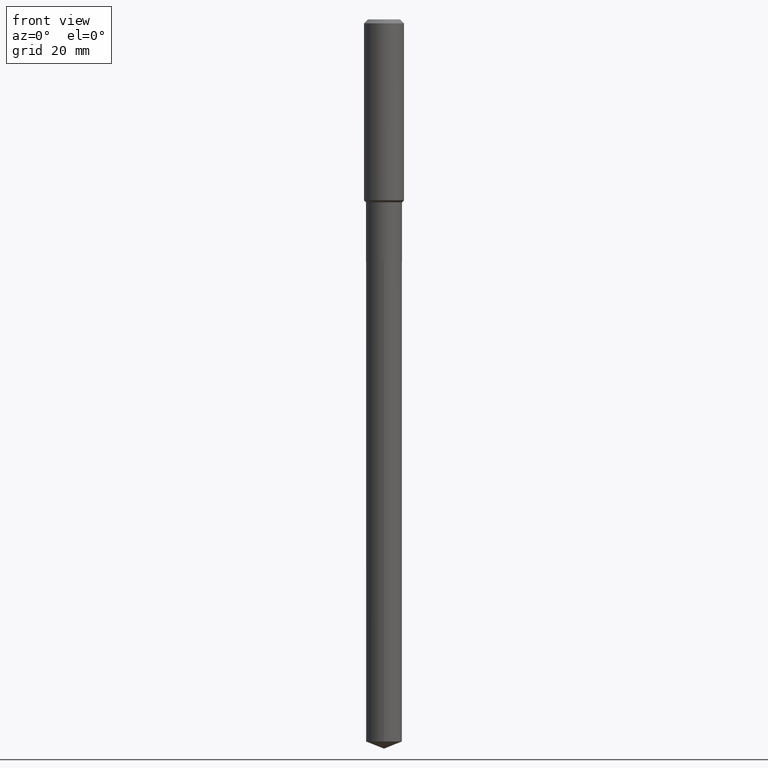
[diagram: clean part render]
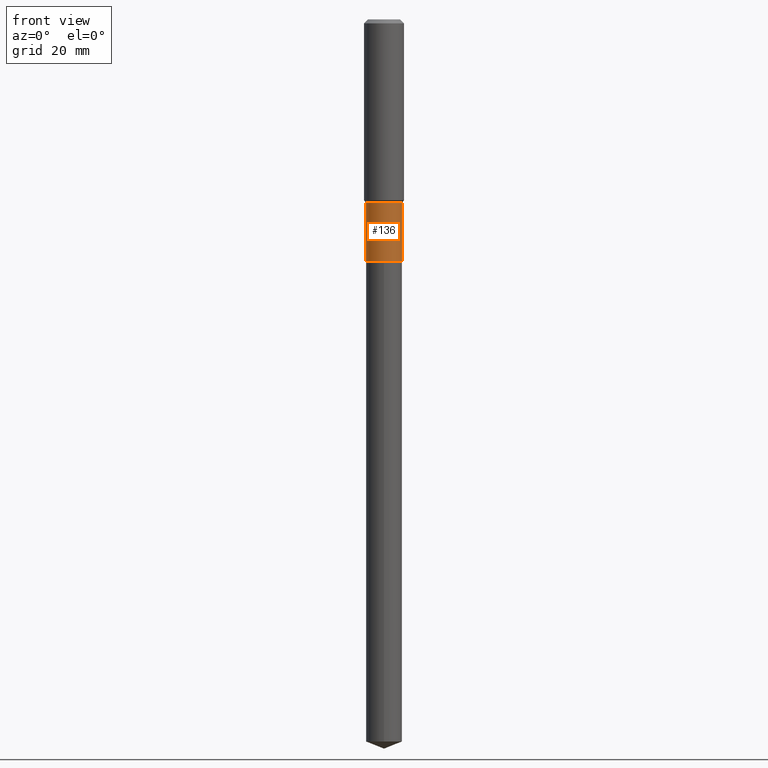
[diagram: same view with one face highlighted and labeled with its STEP entity id]
A machine part, front view. The second image highlights one B-rep face of the part: STEP entity #136.
In plain terms, the highlighted cylindrical surface (edge-blend (fillet) strip) has radius 4.4996 mm, axis along (-0, 0, 1).
Its self-contained STEP definition (entity closure, byte-faithful):
#1 = DIRECTION ( 'NONE',  ( -2.445468806185136597E-29, 3.491481338843145583E-15, 1.000000000000000000 ) ) ;
#7 = AXIS2_PLACEMENT_3D ( 'NONE', #332, #1, #293 ) ;
#15 = CARTESIAN_POINT ( 'NONE',  ( 0.1771500000000000574, -9.549899758003767043E-15, -2.380900000000000016 ) ) ;
#51 = ORIENTED_EDGE ( 'NONE', *, *, #120, .T. ) ;
#56 = FACE_OUTER_BOUND ( 'NONE', #388, .T. ) ;
#65 = EDGE_CURVE ( 'NONE', #99, #281, #219, .T. ) ;
#84 = VECTOR ( 'NONE', #200, 39.37007874015748143 ) ;
#89 = DIRECTION ( 'NONE',  ( -2.445468806185136877E-29, 3.491481338843145188E-15, 1.000000000000000000 ) ) ;
#99 = VERTEX_POINT ( 'NONE', #460 ) ;
#120 = EDGE_CURVE ( 'NONE', #421, #245, #129, .T. ) ;
#129 = CIRCLE ( 'NONE', #319, 0.1771500000000000574 ) ;
#136 = ADVANCED_FACE ( 'NONE', ( #56 ), #291, .T. ) ;
#148 = CARTESIAN_POINT ( 'NONE',  ( 0.1771499999999999464, -7.510874656119368833E-15, -1.796899999999999720 ) ) ;
#168 = DIRECTION ( 'NONE',  ( -2.445468806185136597E-29, 3.491481338843145583E-15, 1.000000000000000000 ) ) ;
#182 = DIRECTION ( 'NONE',  ( -2.445468806185136597E-29, 3.491481338843145583E-15, 1.000000000000000000 ) ) ;
#184 = EDGE_CURVE ( 'NONE', #421, #99, #274, .T. ) ;
#197 = CARTESIAN_POINT ( 'NONE',  ( 0.1771499999999999742, -1.237031838352121999E-15, 8.638147158322498559E-30 ) ) ;
#200 = DIRECTION ( 'NONE',  ( -2.445468806185136877E-29, 3.491481338843145188E-15, 1.000000000000000000 ) ) ;
#206 = CARTESIAN_POINT ( 'NONE',  ( -0.1771500000000000574, -6.034628912310427854E-15, -2.380900000000000016 ) ) ;
#219 = CIRCLE ( 'NONE', #7, 0.1771499999999999464 ) ;
#229 = LINE ( 'NONE', #197, #452 ) ;
#231 = EDGE_CURVE ( 'NONE', #245, #281, #229, .T. ) ;
#245 = VERTEX_POINT ( 'NONE', #15 ) ;
#249 = DIRECTION ( 'NONE',  ( 1.000000000000000000, -6.982962677686264344E-15, 0.000000000000000000 ) ) ;
#274 = LINE ( 'NONE', #461, #84 ) ;
#281 = VERTEX_POINT ( 'NONE', #148 ) ;
#291 = CYLINDRICAL_SURFACE ( 'NONE', #304, 0.1771499999999999742 ) ;
#293 = DIRECTION ( 'NONE',  ( 1.000000000000000000, -6.982962677686263555E-15, 0.000000000000000000 ) ) ;
#304 = AXIS2_PLACEMENT_3D ( 'NONE', #369, #182, #330 ) ;
#317 = ORIENTED_EDGE ( 'NONE', *, *, #65, .F. ) ;
#319 = AXIS2_PLACEMENT_3D ( 'NONE', #438, #168, #249 ) ;
#330 = DIRECTION ( 'NONE',  ( 1.000000000000000000, -6.982962677686266711E-15, 4.876176775795935793E-29 ) ) ;
#332 = CARTESIAN_POINT ( 'NONE',  ( 4.394262897834071178E-29, -6.273842817767247228E-15, -1.796899999999999720 ) ) ;
#356 = ORIENTED_EDGE ( 'NONE', *, *, #231, .T. ) ;
#369 = CARTESIAN_POINT ( 'NONE',  ( 0.000000000000000000, 0.000000000000000000, 0.000000000000000000 ) ) ;
#388 = EDGE_LOOP ( 'NONE', ( #476, #51, #356, #317 ) ) ;
#421 = VERTEX_POINT ( 'NONE', #206 ) ;
#438 = CARTESIAN_POINT ( 'NONE',  ( 5.822416680646192008E-29, -8.312867919651646226E-15, -2.380900000000000016 ) ) ;
#452 = VECTOR ( 'NONE', #89, 39.37007874015748143 ) ;
#460 = CARTESIAN_POINT ( 'NONE',  ( -0.1771499999999999464, -6.034628912310428643E-15, -1.796899999999999720 ) ) ;
#461 = CARTESIAN_POINT ( 'NONE',  ( -0.1771499999999999742, 1.258726456399017296E-15, -8.713893512386563924E-30 ) ) ;
#476 = ORIENTED_EDGE ( 'NONE', *, *, #184, .F. ) ;